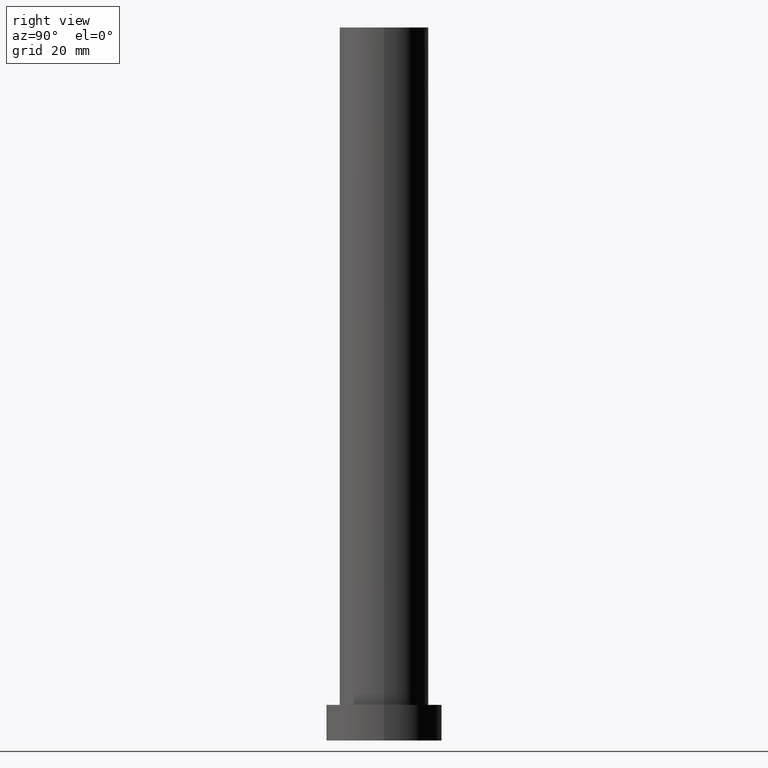
[diagram: clean part render]
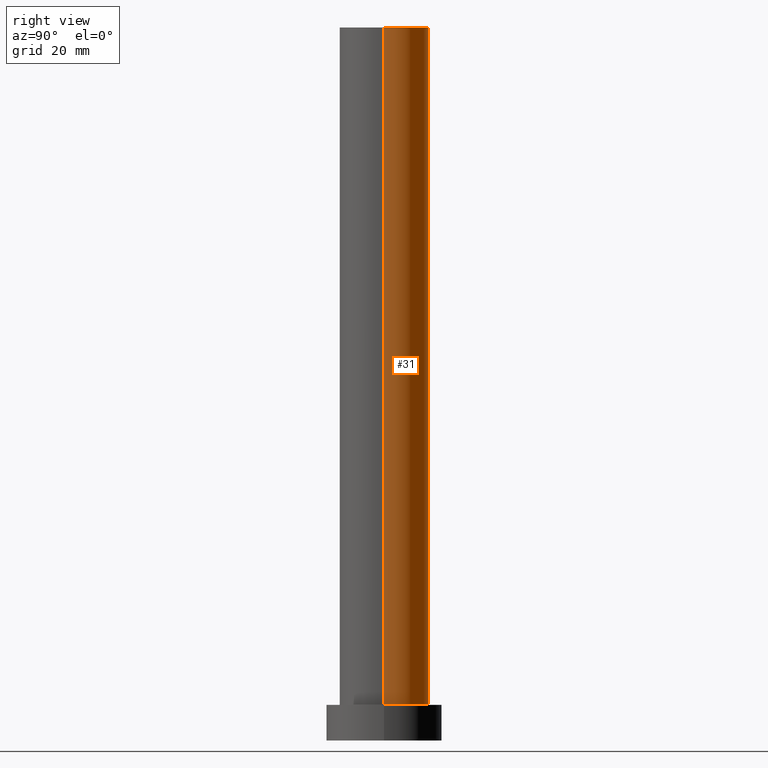
[diagram: same view with one face highlighted and labeled with its STEP entity id]
A machine part, right view. The second image highlights one B-rep face of the part: STEP entity #31.
In plain terms, the highlighted cylindrical surface (partial cylindrical patch) has radius 10 mm, axis along (-0, -0, -1).
Its self-contained STEP definition (entity closure, byte-faithful):
#1 = CARTESIAN_POINT ( 'NONE',  ( -10.00000000000000000, 0.000000000000000000, 160.0000000000000000 ) ) ;
#13 = CYLINDRICAL_SURFACE ( 'NONE', #140, 10.00000000000000000 ) ;
#19 = CARTESIAN_POINT ( 'NONE',  ( -10.00000000000000000, 0.000000000000000000, 160.0000000000000000 ) ) ;
#25 = CARTESIAN_POINT ( 'NONE',  ( 0.000000000000000000, 0.000000000000000000, 8.000000000000000000 ) ) ;
#27 = ORIENTED_EDGE ( 'NONE', *, *, #170, .F. ) ;
#31 = ADVANCED_FACE ( 'NONE', ( #56 ), #13, .T. ) ;
#36 = DIRECTION ( 'NONE',  ( -1.000000000000000000, 0.000000000000000000, 0.000000000000000000 ) ) ;
#38 = CIRCLE ( 'NONE', #176, 10.00000000000000000 ) ;
#56 = FACE_OUTER_BOUND ( 'NONE', #112, .T. ) ;
#61 = EDGE_CURVE ( 'NONE', #199, #211, #161, .T. ) ;
#63 = DIRECTION ( 'NONE',  ( -0.000000000000000000, -0.000000000000000000, -1.000000000000000000 ) ) ;
#70 = CARTESIAN_POINT ( 'NONE',  ( 0.000000000000000000, 0.000000000000000000, 160.0000000000000000 ) ) ;
#76 = CARTESIAN_POINT ( 'NONE',  ( -10.00000000000000000, 0.000000000000000000, 8.000000000000000000 ) ) ;
#96 = ORIENTED_EDGE ( 'NONE', *, *, #217, .T. ) ;
#99 = EDGE_CURVE ( 'NONE', #204, #164, #192, .T. ) ;
#112 = EDGE_LOOP ( 'NONE', ( #27, #149, #96, #205 ) ) ;
#114 = DIRECTION ( 'NONE',  ( 0.000000000000000000, 0.000000000000000000, 1.000000000000000000 ) ) ;
#116 = DIRECTION ( 'NONE',  ( 0.000000000000000000, 0.000000000000000000, 1.000000000000000000 ) ) ;
#128 = AXIS2_PLACEMENT_3D ( 'NONE', #137, #116, #159 ) ;
#137 = CARTESIAN_POINT ( 'NONE',  ( 0.000000000000000000, 0.000000000000000000, 160.0000000000000000 ) ) ;
#140 = AXIS2_PLACEMENT_3D ( 'NONE', #70, #247, #36 ) ;
#141 = DIRECTION ( 'NONE',  ( -0.000000000000000000, -0.000000000000000000, -1.000000000000000000 ) ) ;
#149 = ORIENTED_EDGE ( 'NONE', *, *, #61, .T. ) ;
#159 = DIRECTION ( 'NONE',  ( 1.000000000000000000, 0.000000000000000000, 0.000000000000000000 ) ) ;
#161 = LINE ( 'NONE', #240, #251 ) ;
#162 = DIRECTION ( 'NONE',  ( 1.000000000000000000, 0.000000000000000000, 0.000000000000000000 ) ) ;
#164 = VERTEX_POINT ( 'NONE', #76 ) ;
#170 = EDGE_CURVE ( 'NONE', #199, #204, #232, .T. ) ;
#175 = CARTESIAN_POINT ( 'NONE',  ( 10.00000000000000000, 1.224646799147353256E-15, 160.0000000000000000 ) ) ;
#176 = AXIS2_PLACEMENT_3D ( 'NONE', #25, #114, #162 ) ;
#180 = VECTOR ( 'NONE', #63, 1000.000000000000000 ) ;
#192 = LINE ( 'NONE', #19, #180 ) ;
#199 = VERTEX_POINT ( 'NONE', #175 ) ;
#204 = VERTEX_POINT ( 'NONE', #1 ) ;
#205 = ORIENTED_EDGE ( 'NONE', *, *, #99, .F. ) ;
#211 = VERTEX_POINT ( 'NONE', #237 ) ;
#217 = EDGE_CURVE ( 'NONE', #211, #164, #38, .T. ) ;
#232 = CIRCLE ( 'NONE', #128, 10.00000000000000000 ) ;
#237 = CARTESIAN_POINT ( 'NONE',  ( 10.00000000000000000, 1.224646799147353256E-15, 8.000000000000000000 ) ) ;
#240 = CARTESIAN_POINT ( 'NONE',  ( 10.00000000000000000, 1.224646799147353256E-15, 160.0000000000000000 ) ) ;
#247 = DIRECTION ( 'NONE',  ( -0.000000000000000000, -0.000000000000000000, -1.000000000000000000 ) ) ;
#251 = VECTOR ( 'NONE', #141, 1000.000000000000000 ) ;